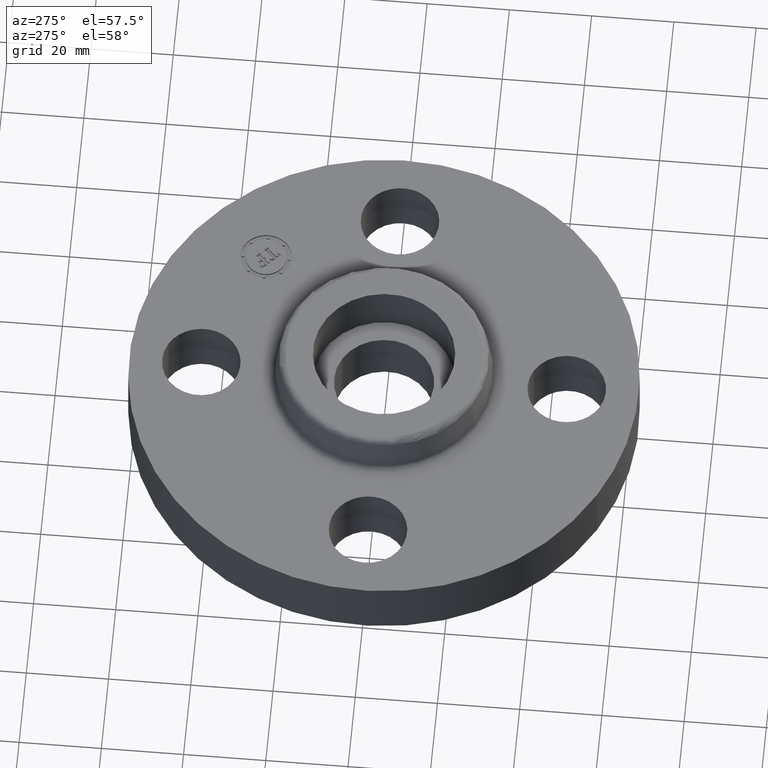
[diagram: clean part render]
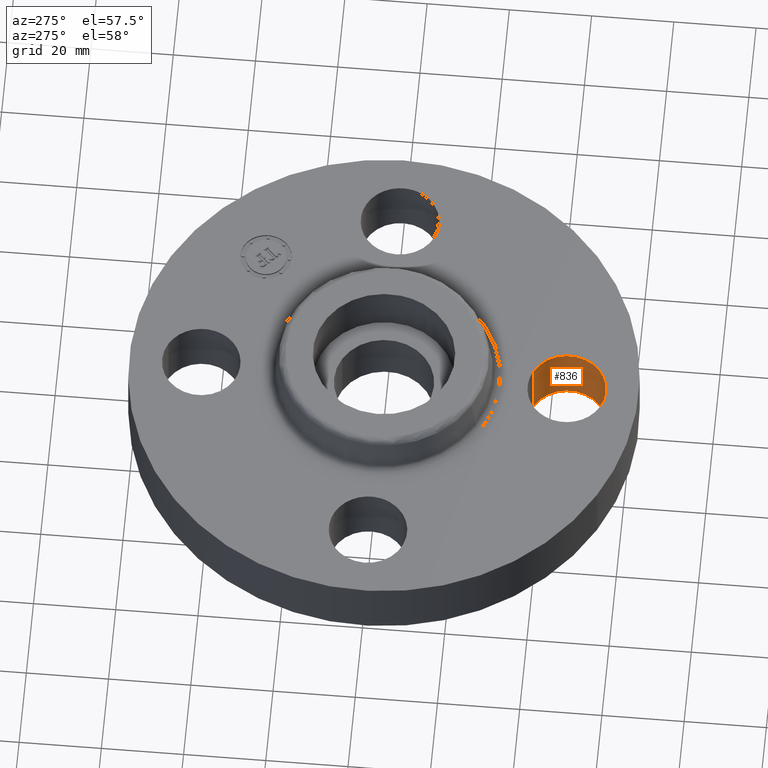
[diagram: same view with one face highlighted and labeled with its STEP entity id]
A machine part, auxiliary view. The second image highlights one B-rep face of the part: STEP entity #836.
In plain terms, the highlighted cylindrical surface (partial cylindrical patch) has radius 9.525 mm, axis along (0, 0, -1).
Its self-contained STEP definition (entity closure, byte-faithful):
#536=AXIS2_PLACEMENT_3D('Circle Axis2P3D',#534,#535,$) ;
#809=AXIS2_PLACEMENT_3D('Cylinder Axis2P3D',#806,#807,#808) ;
#827=AXIS2_PLACEMENT_3D('Circle Axis2P3D',#825,#826,$) ;
#534=CARTESIAN_POINT('Axis2P3D Location',(-4.36653687836E-011,-1.75,0.)) ;
#538=CARTESIAN_POINT('Vertex',(0.179784576973,-1.42090653929,0.)) ;
#540=CARTESIAN_POINT('Vertex',(-0.179784576973,-2.07909346076,0.)) ;
#806=CARTESIAN_POINT('Axis2P3D Location',(-1.72584639625E-016,-1.75000000001,0.616062992128)) ;
#811=CARTESIAN_POINT('Line Origine',(0.179784576977,-1.4209065393,0.309999999994)) ;
#815=CARTESIAN_POINT('Vertex',(0.179784576973,-1.42090653933,0.620000000002)) ;
#818=CARTESIAN_POINT('Line Origine',(-0.179784576977,-2.07909346072,0.309999999994)) ;
#822=CARTESIAN_POINT('Vertex',(-0.179784576977,-2.07909346072,0.619999999987)) ;
#825=CARTESIAN_POINT('Axis2P3D Location',(-1.72584639625E-016,-1.75000000001,0.619999999987)) ;
#535=DIRECTION('Axis2P3D Direction',(0.,0.,-0.0393700787402)) ;
#807=DIRECTION('Axis2P3D Direction',(0.,0.,-0.0393700787402)) ;
#808=DIRECTION('Axis2P3D XDirection',(0.0188750212049,0.0345504945626,0.)) ;
#812=DIRECTION('Vector Direction',(0.,0.,-0.0393700787402)) ;
#819=DIRECTION('Vector Direction',(0.,0.,-0.0393700787402)) ;
#826=DIRECTION('Axis2P3D Direction',(0.,0.,-0.0393700787402)) ;
#813=VECTOR('Line Direction',#812,0.0393700787402) ;
#820=VECTOR('Line Direction',#819,0.0393700787402) ;
#831=ORIENTED_EDGE('',*,*,#817,.F.) ;
#832=ORIENTED_EDGE('',*,*,#542,.T.) ;
#833=ORIENTED_EDGE('',*,*,#824,.T.) ;
#834=ORIENTED_EDGE('',*,*,#829,.F.) ;
#836=ADVANCED_FACE('PartBody',(#835),#810,.F.) ;
#537=CIRCLE('generated circle',#536,0.375000000021) ;
#828=CIRCLE('generated circle',#827,0.375000000001) ;
#810=CYLINDRICAL_SURFACE('generated cylinder',#809,0.375000000001) ;
#542=EDGE_CURVE('',#539,#541,#537,.T.) ;
#817=EDGE_CURVE('',#539,#816,#814,.F.) ;
#824=EDGE_CURVE('',#541,#823,#821,.F.) ;
#829=EDGE_CURVE('',#816,#823,#828,.T.) ;
#830=EDGE_LOOP('',(#831,#832,#833,#834)) ;
#835=FACE_OUTER_BOUND('',#830,.T.) ;
#814=LINE('Line',#811,#813) ;
#821=LINE('Line',#818,#820) ;
#539=VERTEX_POINT('',#538) ;
#541=VERTEX_POINT('',#540) ;
#816=VERTEX_POINT('',#815) ;
#823=VERTEX_POINT('',#822) ;